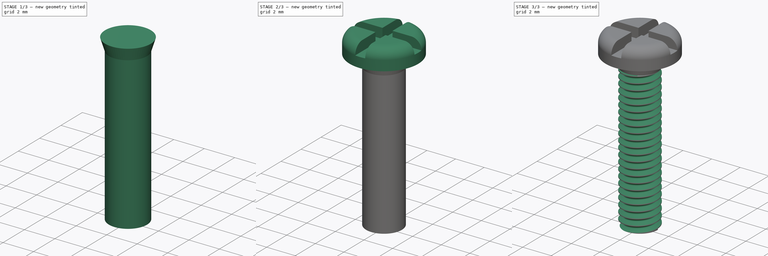
[diagram: build sequence overview — one tinted view per stage of 3, left to right]
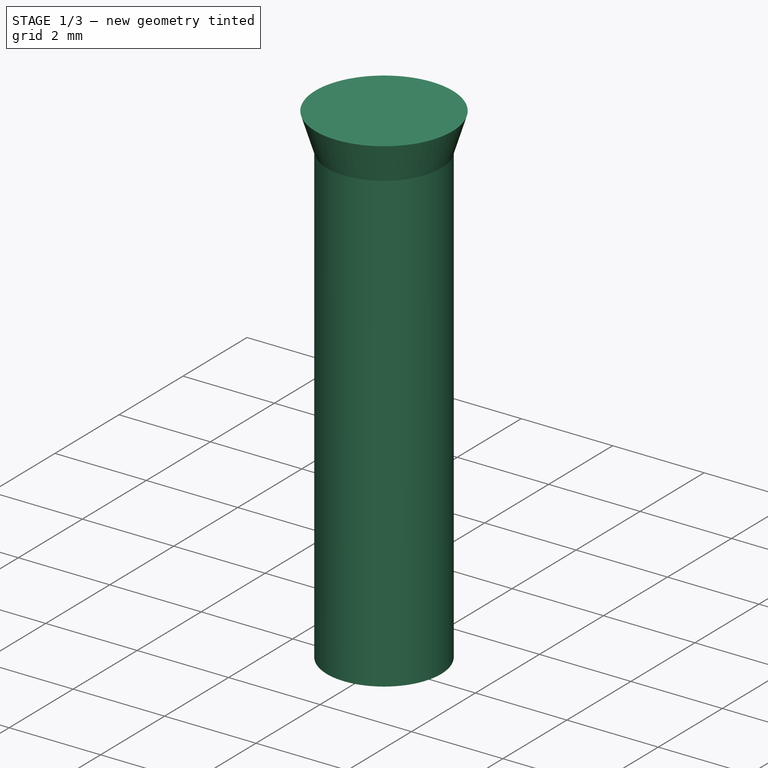
[diagram: stage 1 of 3 — iso view after this stage's code; geometry added in this stage tinted green]
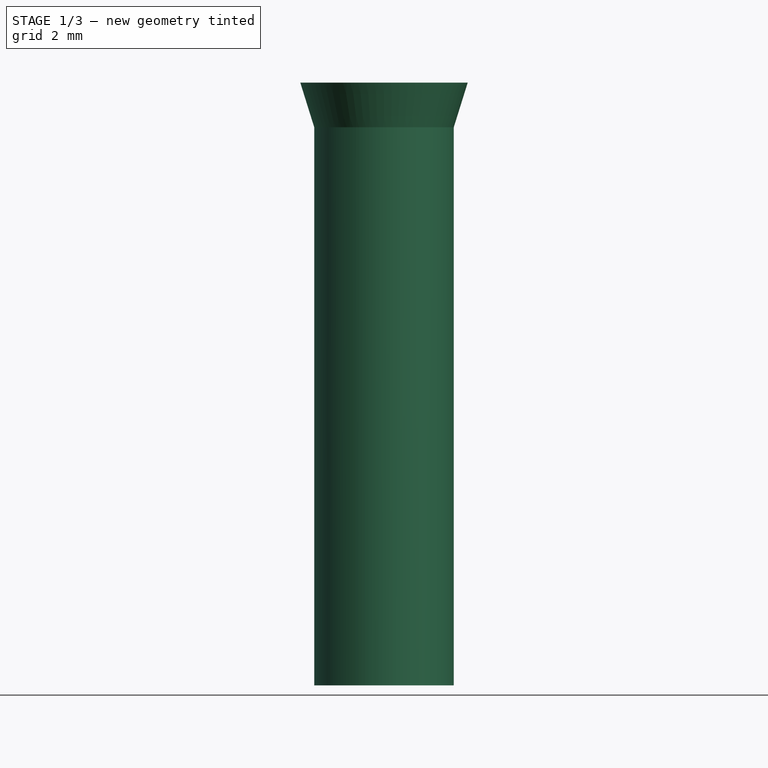
[diagram: stage 1 of 3 — front view after this stage's code; geometry added in this stage tinted green]
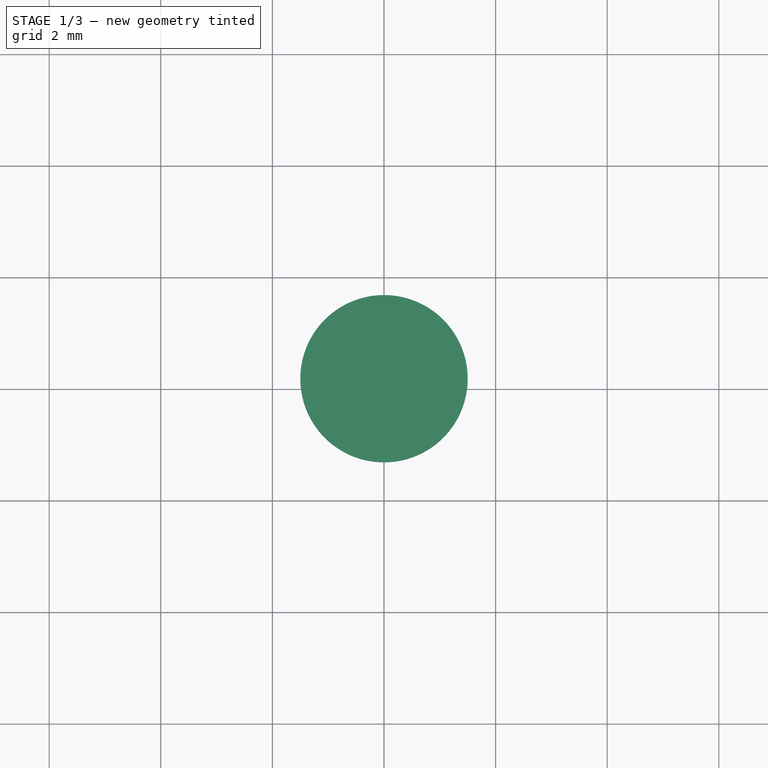
[diagram: stage 1 of 3 — top view after this stage's code; geometry added in this stage tinted green]
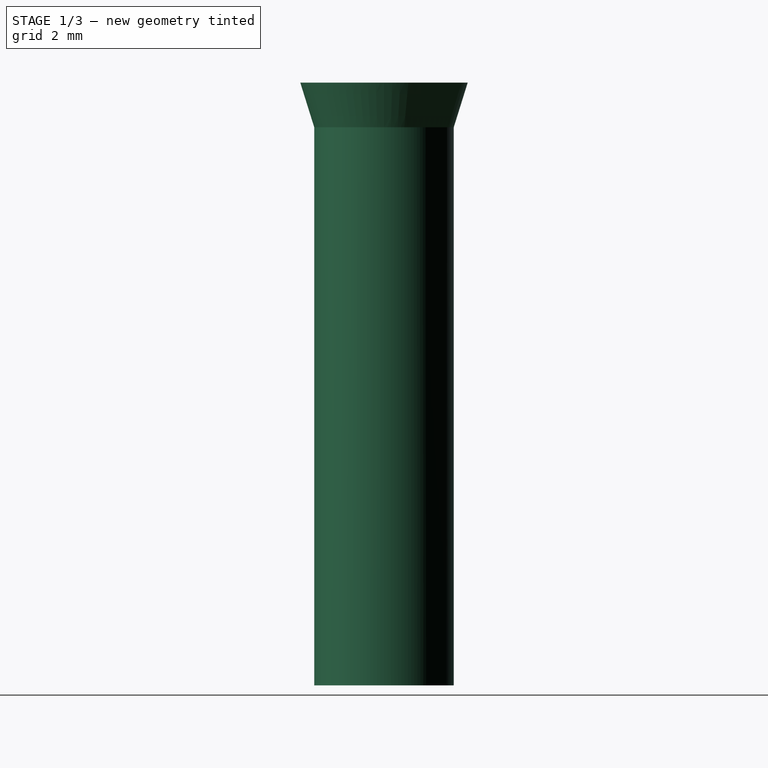
[diagram: stage 1 of 3 — right view after this stage's code; geometry added in this stage tinted green]
FCSTD DOCUMENT  (FreeCAD 1.0R39109 (Git))
Label: Винт
License: All rights reserved
LicenseURL: https://en.wikipedia.org/wiki/All_rights_reserved
objects: Sketcher::SketchObject×5, PartDesign::Pad×2, PartDesign::Plane×1, PartDesign::AdditiveLoft×1, PartDesign::Fillet×1, PartDesign::Pocket×1, PartDesign::Body×1, Part::FeaturePython×1, Part::Cut×1
note: 29 computed .brp shape members not serialized (recipe doc carries the construction recipe); baked Part::Feature solids carry a one-line shape summary decoded from their .brp

FEATURE [Sketcher::SketchObject] Sketch
  ArcFitTolerance = 1e-06
  AttachmentSupport = -> [XY_Plane]
  FullyConstrained = true
  MakeInternals = false
  MapMode = 5
  sketch-geometry (1):
    g0: Circle CenterX=0 CenterY=0 CenterZ=0 NormalX=0 NormalY=0 NormalZ=1 AngleXU=0 Radius=1.25
  constraints (2):
    c: Diameter(g0) = 2.5
    c: Coincident(g0,g-1)
FEATURE [PartDesign::Pad] Pad
  Direction = (0,0,1)
  Length = 10
  Length2 = 10
  Profile = -> Sketch
  ReferenceAxis = -> Sketch [N_Axis]
  Refine = true
  Suppressed = false
  Type = 0
FEATURE [PartDesign::Plane] DatumPlane
  AttachmentOffset = pos=(0,0,0.8) rot=(0,0,1;0rad)
  AttachmentSupport = -> [Pad]
  Length = 60
  MapMode = 11
  Placement = pos=(0,0,10.8) rot=(0,0,1;1.5708rad)
  ResizeMode = 0
  Width = 60
FEATURE [Sketcher::SketchObject] Sketch001
  ArcFitTolerance = 1e-06
  AttachmentSupport = -> [DatumPlane]
  FullyConstrained = true
  MakeInternals = false
  MapMode = 5
  Placement = pos=(0,0,10.8) rot=(0,0,1;1.5708rad)
  sketch-geometry (1):
    g0: Circle CenterX=0 CenterY=0 CenterZ=0 NormalX=0 NormalY=0 NormalZ=1 AngleXU=0 Radius=1.5
  constraints (2):
    c: Diameter(g0) = 3
    c: Coincident(g0,g-1)
FEATURE [Sketcher::SketchObject] Sketch002
  ArcFitTolerance = 1e-06
  AttachmentSupport = -> [Pad]
  FullyConstrained = true
  MakeInternals = false
  MapMode = 5
  Placement = pos=(0,0,10) rot=(0,0,1;0rad)
  sketch-geometry (1):
    g0: Circle CenterX=0 CenterY=0 CenterZ=0 NormalX=0 NormalY=0 NormalZ=1 AngleXU=0 Radius=1.25
  constraints (2):
    c: Diameter(g0) = 2.5
    c: Coincident(g0,g-1)
FEATURE [PartDesign::AdditiveLoft] AdditiveLoft
  BaseFeature = -> Pad
  Closed = false
  Profile = -> Sketch001
  Refine = true
  Ruled = false
  Sections = -> [Sketch002]
  Suppressed = false
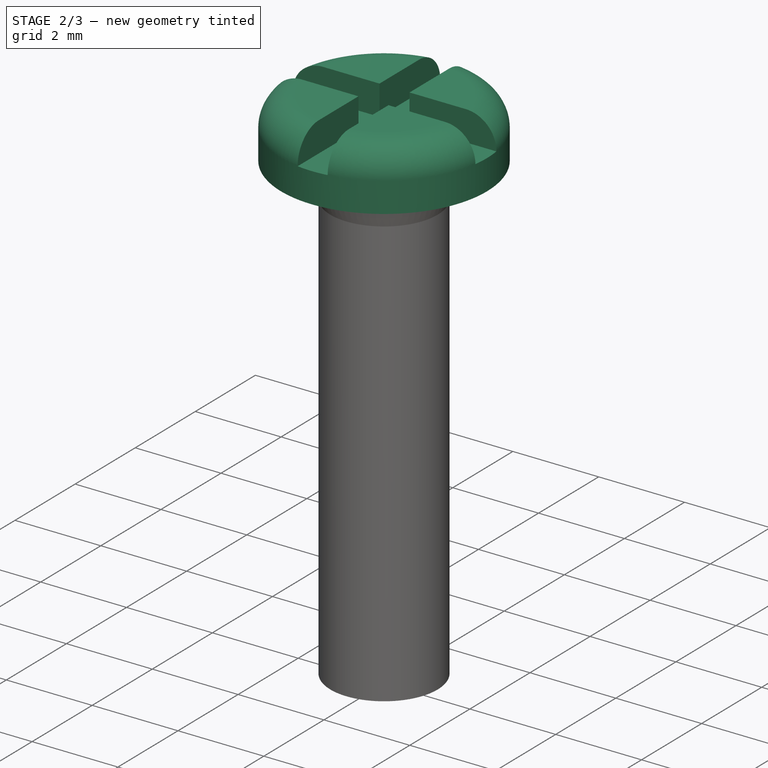
[diagram: stage 2 of 3 — iso view after this stage's code; geometry added in this stage tinted green]
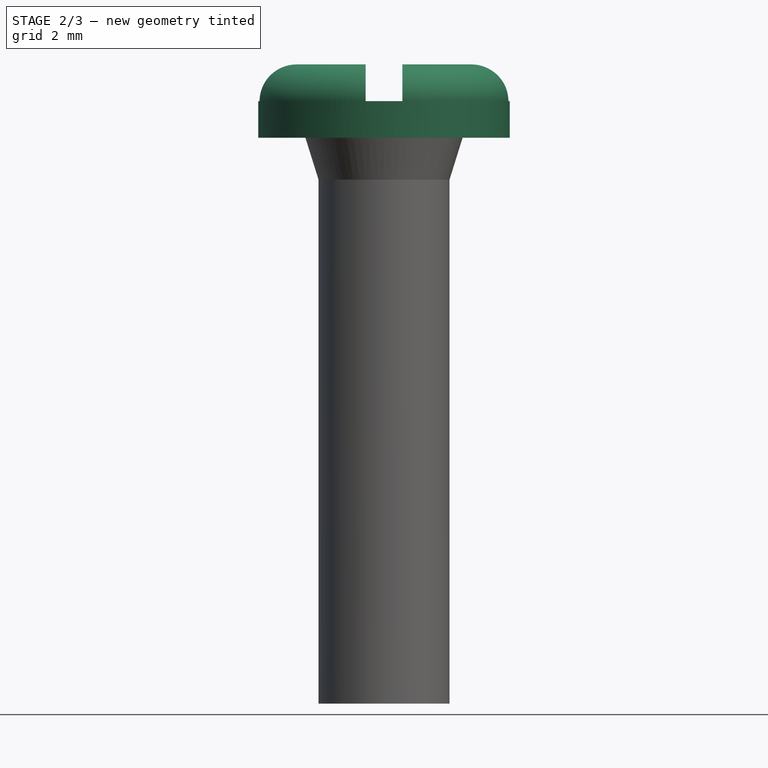
[diagram: stage 2 of 3 — front view after this stage's code; geometry added in this stage tinted green]
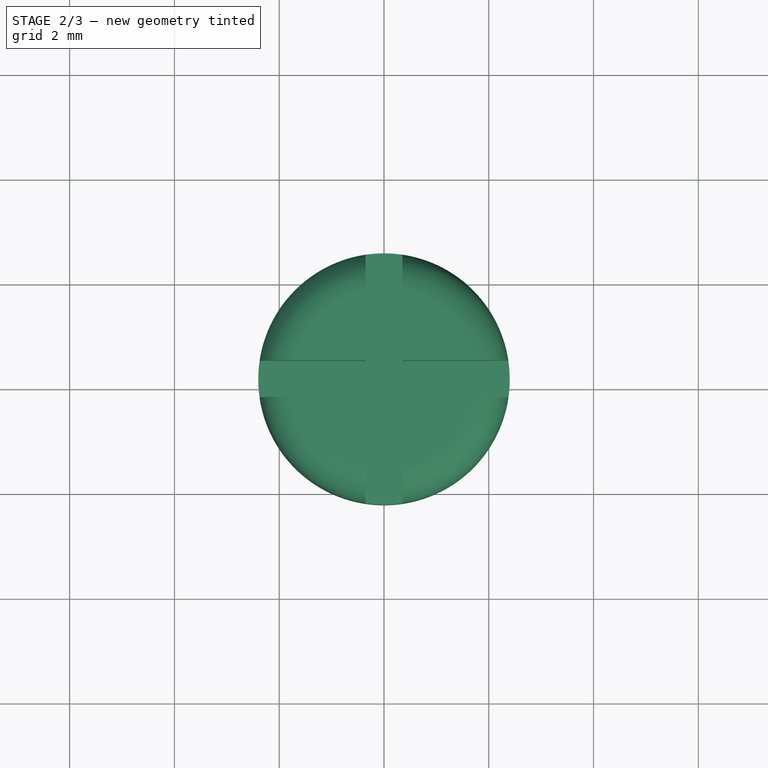
[diagram: stage 2 of 3 — top view after this stage's code; geometry added in this stage tinted green]
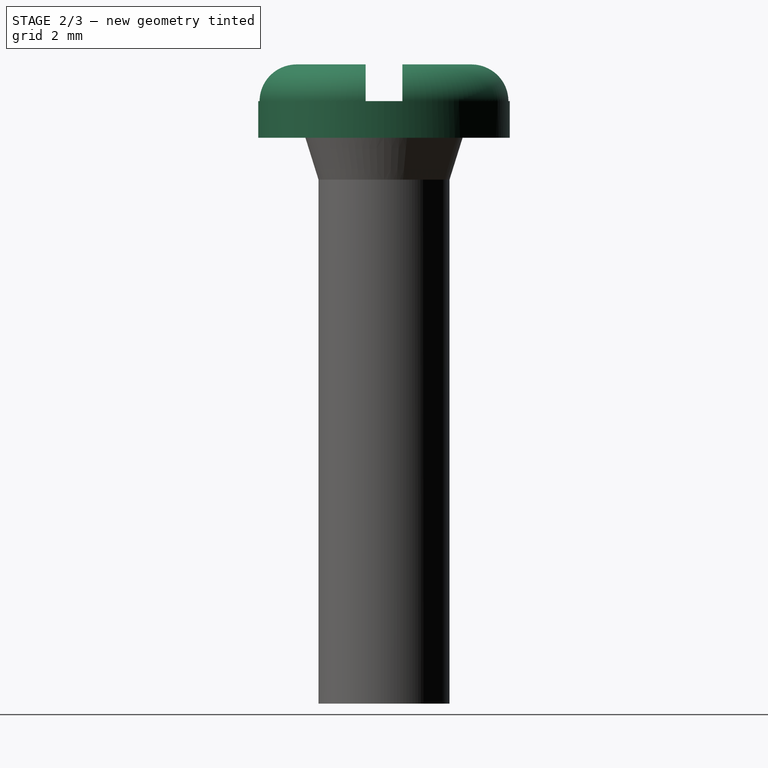
[diagram: stage 2 of 3 — right view after this stage's code; geometry added in this stage tinted green]
FEATURE [Sketcher::SketchObject] Sketch003
  ArcFitTolerance = 1e-06
  AttachmentSupport = -> [AdditiveLoft]
  FullyConstrained = true
  MakeInternals = false
  MapMode = 5
  Placement = pos=(0,0,10.8) rot=(0,0,1;0rad)
  sketch-geometry (1):
    g0: Circle CenterX=0 CenterY=0 CenterZ=0 NormalX=0 NormalY=0 NormalZ=1 AngleXU=0 Radius=2.4
  constraints (2):
    c: Diameter(g0) = 4.8
    c: Coincident(g0,g-1)
FEATURE [PartDesign::Pad] Pad001
  BaseFeature = -> AdditiveLoft
  Direction = (0,0,1)
  Length = 1.4
  Length2 = 10
  Profile = -> Sketch003
  ReferenceAxis = -> Sketch003 [N_Axis]
  Refine = true
  Suppressed = false
  Type = 0
FEATURE [PartDesign::Fillet] Fillet
  Base = -> Pad001 [Edge11]
  BaseFeature = -> Pad001
  Radius = 0.7
  Refine = true
  SupportTransform = false
  Suppressed = false
  UseAllEdges = false
FEATURE [Sketcher::SketchObject] Sketch004
  ArcFitTolerance = 1e-06
  AttachmentSupport = -> [Fillet]
  FullyConstrained = false
  MakeInternals = false
  MapMode = 5
  Placement = pos=(0,0,12.2) rot=(0,0,1;0rad)
  sketch-geometry (12):
    g0: LineSegment StartX=-0.35 StartY=2.5 StartZ=0 EndX=-0.35 EndY=0.35 EndZ=0
    g1: LineSegment StartX=-0.35 StartY=-2.5 StartZ=0 EndX=0.35 EndY=-2.5 EndZ=0
    g2: LineSegment StartX=0.35 StartY=-2.5 StartZ=0 EndX=0.35 EndY=-0.35 EndZ=0
    g3: LineSegment StartX=0.35 StartY=2.5 StartZ=0 EndX=-0.35 EndY=2.5 EndZ=0
    g4: LineSegment StartX=-2.5 StartY=0.35 StartZ=0 EndX=-2.5 EndY=-0.35 EndZ=0
    g5: LineSegment StartX=-2.5 StartY=-0.35 StartZ=0 EndX=-0.35 EndY=-0.35 EndZ=0
    g6: LineSegment StartX=2.5 StartY=-0.35 StartZ=0 EndX=2.5 EndY=0.35 EndZ=0
    g7: LineSegment StartX=2.5 StartY=0.35 StartZ=0 EndX=0.35 EndY=0.35 EndZ=0
    g8: LineSegment StartX=0.35 StartY=0.35 StartZ=0 EndX=0.35 EndY=2.5 EndZ=0
    g9: LineSegment StartX=-0.35 StartY=0.35 StartZ=0 EndX=-2.5 EndY=0.35 EndZ=0
    g10: LineSegment StartX=-0.35 StartY=-0.35 StartZ=0 EndX=-0.35 EndY=-2.5 EndZ=0
    g11: LineSegment StartX=0.35 StartY=-0.35 StartZ=0 EndX=2.5 EndY=-0.35 EndZ=0
  constraints (27):
    c: Coincident(g10,g1)
    c: Coincident(g1,g2)
    c: Coincident(g8,g3)
    c: Coincident(g3,g0)
    c: Vertical(g0)
    c: Vertical(g2)
    c: Horizontal(g1)
    c: Horizontal(g3)
    c: Symmetric(g1,g0,g-1)
    c: Coincident(g4,g5)
    c: Coincident(g11,g6)
    c: Coincident(g6,g7)
    c: Coincident(g9,g4)
    c: Vertical(g4)
    c: Vertical(g6)
    c: Horizontal(g5)
    c: Horizontal(g7)
    c: Symmetric(g11,g4,g-1)
    c: Distance(g4,g6) = 5
    c: Distance(g6,g11) = 0.7
    c: Distance(g0,g8) = 0.7
    c: Distance(g8,g1) = 5
    c: PointOnObject(g2,g11)
    c: Coincident(g7,g8)
    c: Coincident(g0,g9)
    c: Coincident(g5,g10)
    c: PointOnObject(g11,g2)
FEATURE [PartDesign::Pocket] Pocket
  BaseFeature = -> Fillet
  Direction = (0,0,-1)
  Length = 0.7
  Length2 = 5
  Profile = -> Sketch004
  ReferenceAxis = -> Sketch004 [N_Axis]
  Refine = true
  Suppressed = false
  Type = 0
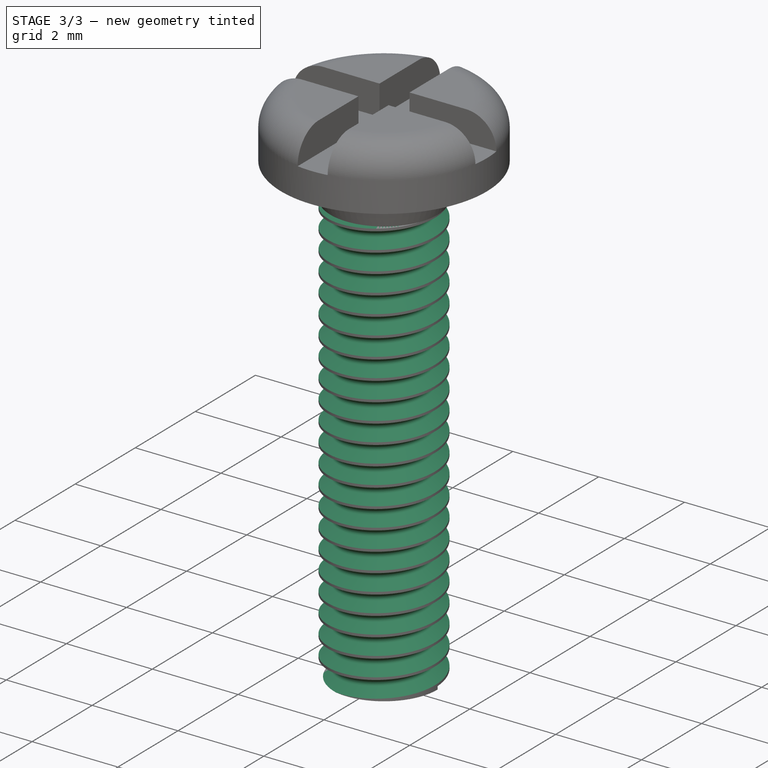
[diagram: stage 3 of 3 — iso view after this stage's code; geometry added in this stage tinted green]
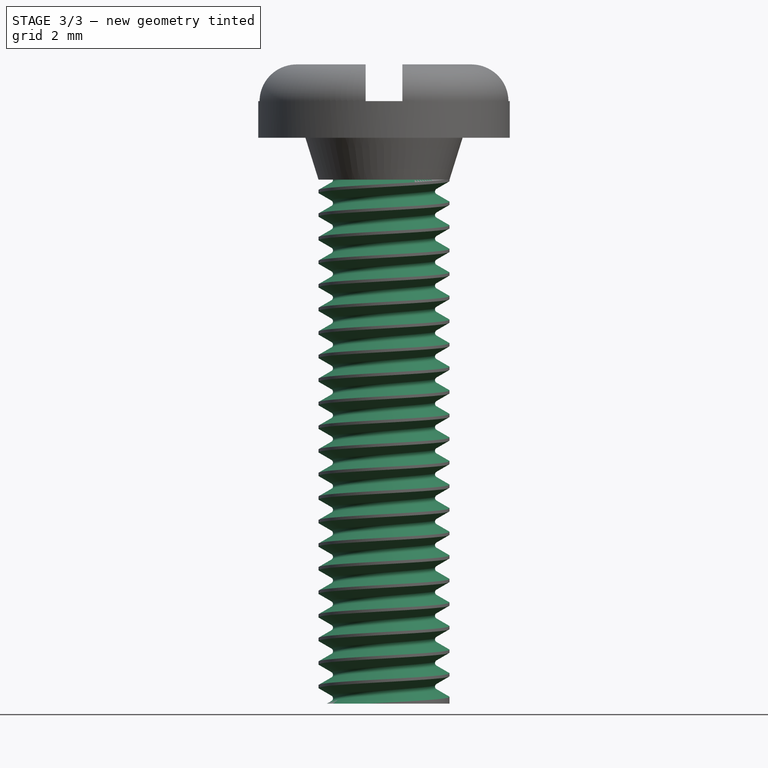
[diagram: stage 3 of 3 — front view after this stage's code; geometry added in this stage tinted green]
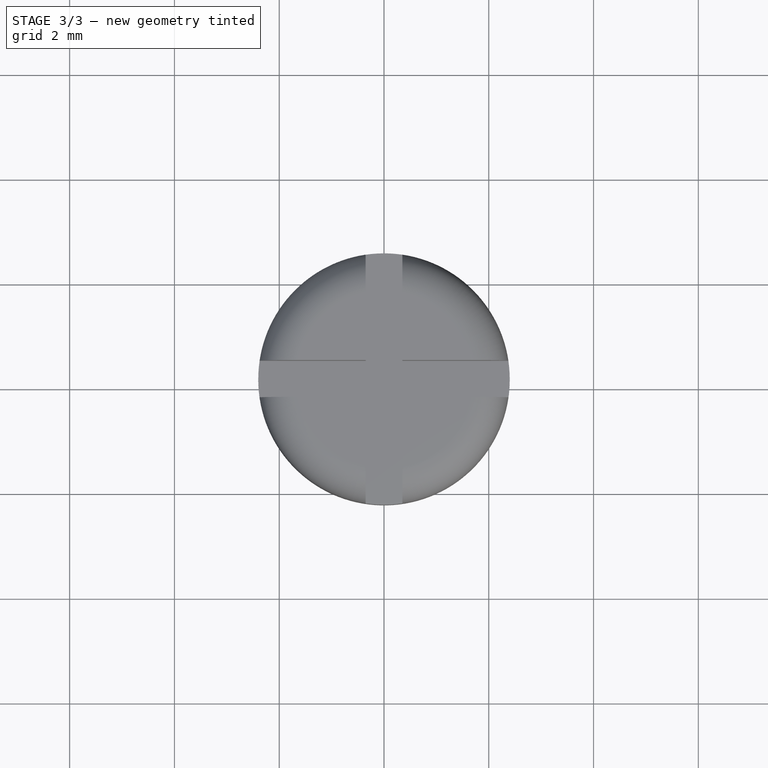
[diagram: stage 3 of 3 — top view after this stage's code; geometry added in this stage tinted green]
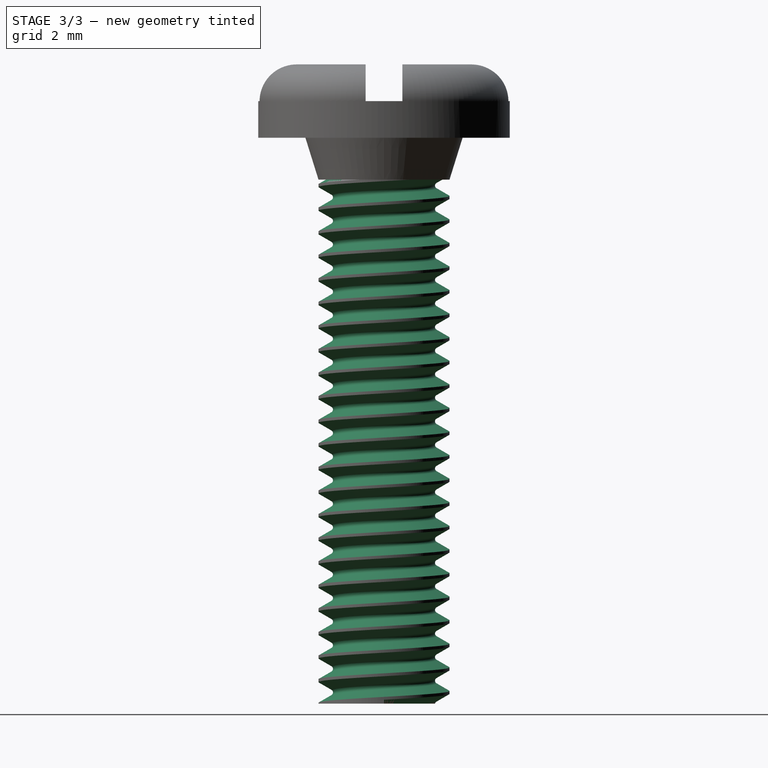
[diagram: stage 3 of 3 — right view after this stage's code; geometry added in this stage tinted green]
FEATURE [PartDesign::Body] Body  label="Тело"
  AllowCompound = false
  Group = -> [Sketch,Pad,DatumPlane,Sketch001,Sketch002,AdditiveLoft,Sketch003,Pad001,Fillet,Sketch004,Pocket]
  Origin = -> Origin
  Tip = -> Pocket
FEATURE [Part::FeaturePython] ScrewDie  label="M2.5x10-Плашка"  # WARN: FeaturePython — macro-defined, semantics opaque (R4)
  BaseObject = -> Body [Pocket.Edge35]
  Diameter = 3
  DiameterCustom = 6
  Invert = false
  LeftHanded = false
  Length = 10
  MatchOuter = false
  OffsetAngle = 0
  PitchCustom = 1
  Placement = pos=(0,0,10) rot=(0,0,1;0rad)
  Thread = true
  Type = 0
FEATURE [Part::Cut] Cut
  Base = -> Body
  Refine = true
  Tool = -> ScrewDie
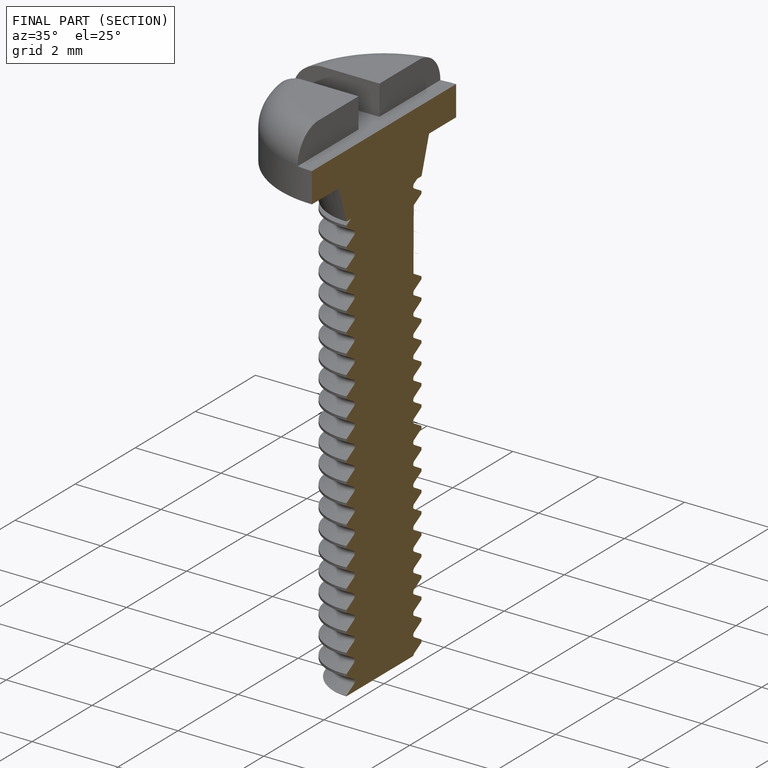
[diagram: finished part — half-section view (interior)]
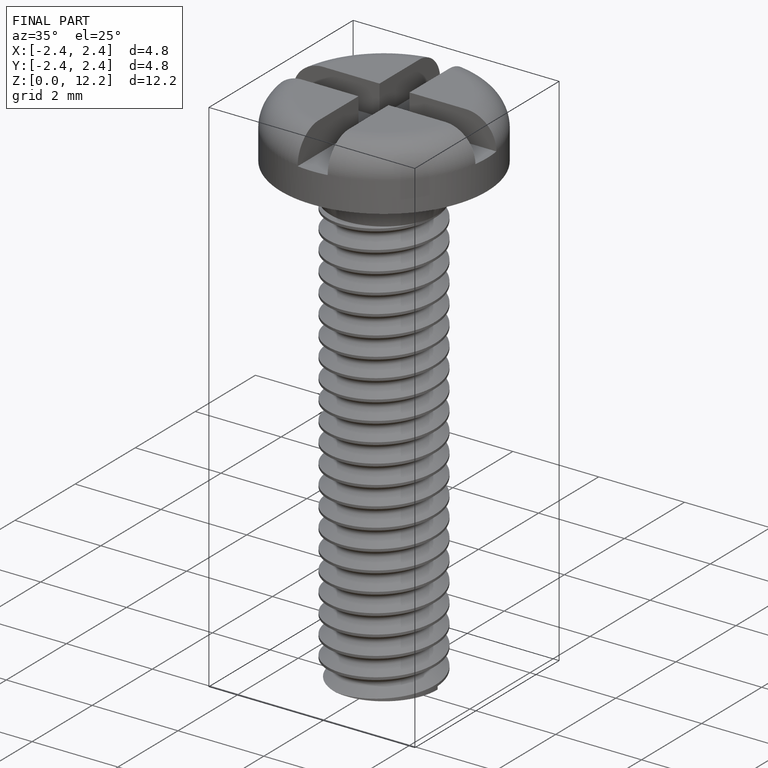
[diagram: finished part — iso view with bounding-box wireframe]
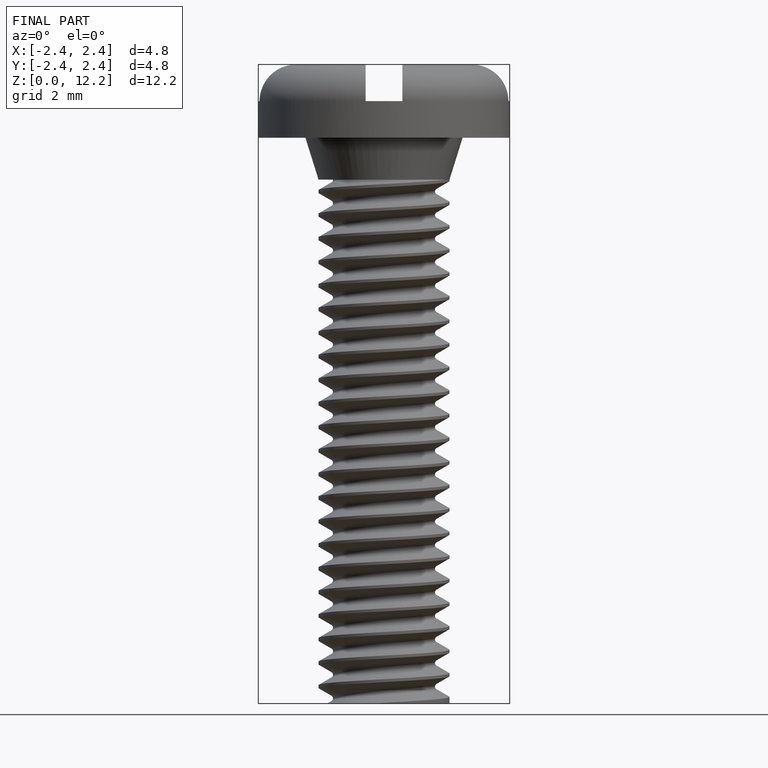
[diagram: finished part — front view with bounding-box wireframe]
